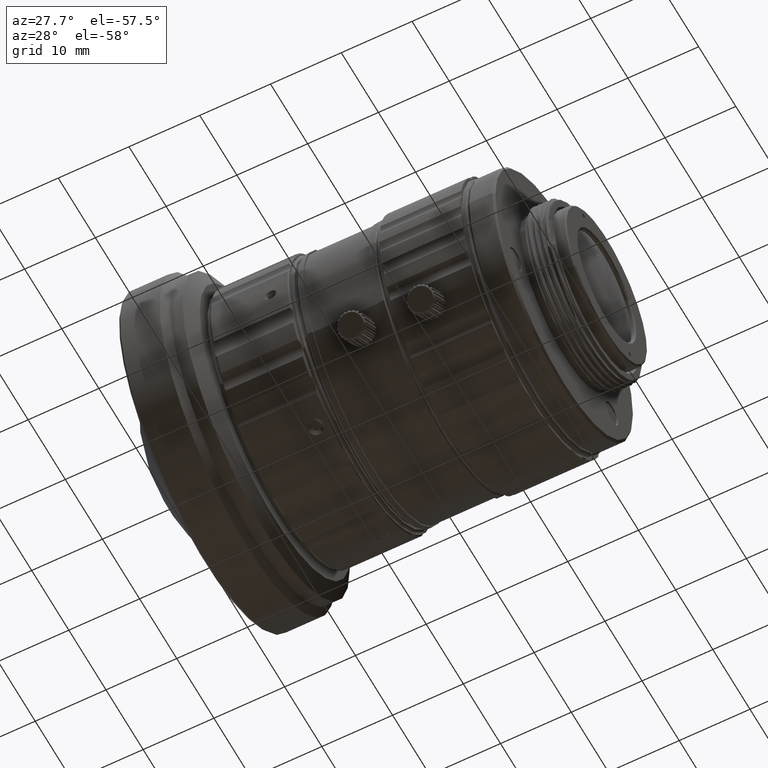
[diagram: clean part render]
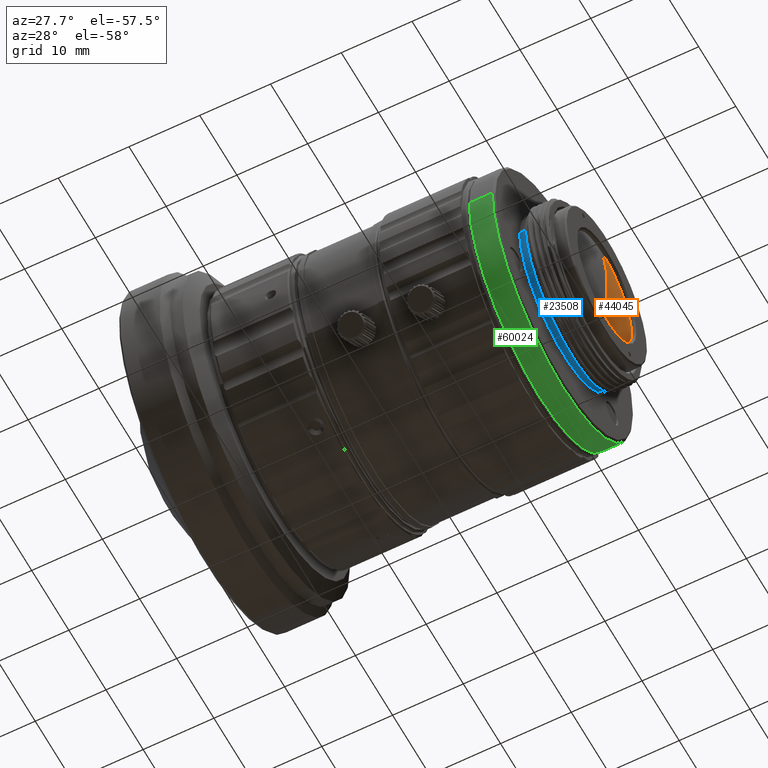
[diagram: same view with three faces highlighted in distinct colors, each labeled with its STEP entity id]
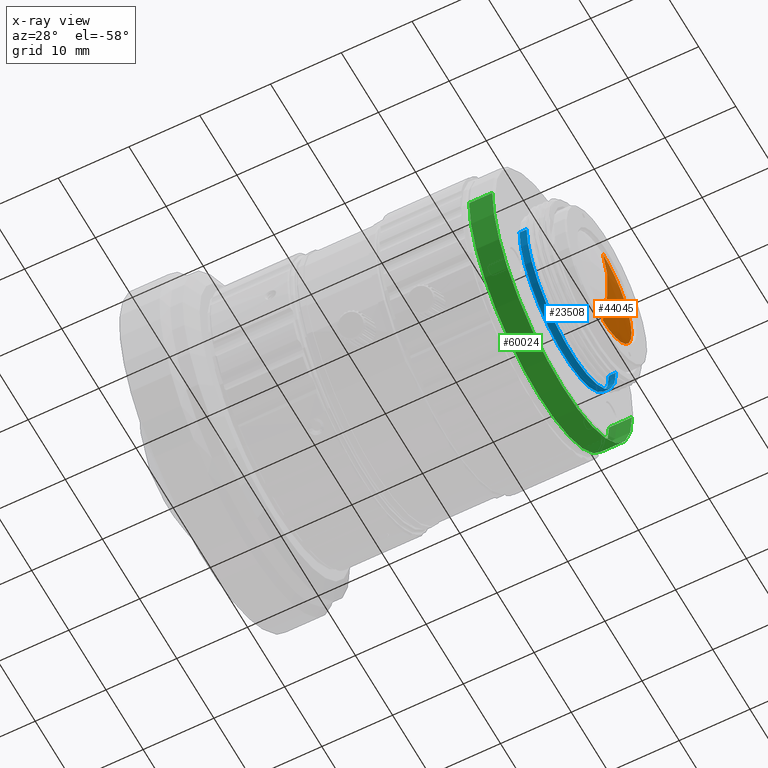
[diagram: x-ray of the same camera — body ghosted, the three highlighted faces saturated]
A machine part, auxiliary view with three faces highlighted in distinct colors.
The next image is the same camera in x-ray (body ghosted, the three faces saturated) — at least one of them is partly hidden behind the body in this view.
Their STEP definitions:

[orange] entity #44045 — the highlighted spherical surface has radius 43.6526 mm.
#222 = DIRECTION ( 'NONE',  ( 1.000000000000000000, 0.000000000000000000, 0.000000000000000000 ) ) ;
#1217 = CIRCLE ( 'NONE', #45950, 43.65259999999999962 ) ;
#1837 = AXIS2_PLACEMENT_3D ( 'NONE', #37677, #51714, #8087 ) ;
#4535 = CARTESIAN_POINT ( 'NONE',  ( 5.447539588305479796, 0.000000000000000000, -7.750000000000000000 ) ) ;
#8087 = DIRECTION ( 'NONE',  ( 0.000000000000000000, 0.000000000000000000, -1.000000000000000000 ) ) ;
#8329 = CARTESIAN_POINT ( 'NONE',  ( 5.447539588305479796, 0.000000000000000000, 7.750000000000000000 ) ) ;
#12480 = DIRECTION ( 'NONE',  ( -1.000000000000000000, 0.000000000000000000, 0.000000000000000000 ) ) ;
#12949 = ORIENTED_EDGE ( 'NONE', *, *, #28989, .T. ) ;
#13675 = VERTEX_POINT ( 'NONE', #8329 ) ;
#13807 = FACE_OUTER_BOUND ( 'NONE', #24471, .T. ) ;
#17659 = SPHERICAL_SURFACE ( 'NONE', #1837, 43.65259999999999962 ) ;
#18196 = CARTESIAN_POINT ( 'NONE',  ( 5.447539588305479796, 0.000000000000000000, 2.722205121666999688E-14 ) ) ;
#21611 = CIRCLE ( 'NONE', #61293, 7.750000000000000000 ) ;
#21740 = ORIENTED_EDGE ( 'NONE', *, *, #21941, .F. ) ;
#21941 = EDGE_CURVE ( 'NONE', #13675, #37461, #33569, .T. ) ;
#22414 = AXIS2_PLACEMENT_3D ( 'NONE', #18196, #12480, #61528 ) ;
#22615 = DIRECTION ( 'NONE',  ( 0.000000000000000000, 0.000000000000000000, 1.000000000000000000 ) ) ;
#24471 = EDGE_LOOP ( 'NONE', ( #42754, #21740, #12949 ) ) ;
#28989 = EDGE_CURVE ( 'NONE', #13675, #45250, #1217, .T. ) ;
#33098 = CARTESIAN_POINT ( 'NONE',  ( 5.447539588305479796, 0.000000000000000000, 2.722205121666999688E-14 ) ) ;
#33569 = CIRCLE ( 'NONE', #22414, 7.750000000000000000 ) ;
#36601 = DIRECTION ( 'NONE',  ( -1.000000000000000000, 0.000000000000000000, 0.000000000000000000 ) ) ;
#37461 = VERTEX_POINT ( 'NONE', #52979 ) ;
#37677 = CARTESIAN_POINT ( 'NONE',  ( -37.51159199928600430, 0.000000000000000000, 2.572346234934999722E-14 ) ) ;
#42754 = ORIENTED_EDGE ( 'NONE', *, *, #62416, .F. ) ;
#44045 = ADVANCED_FACE ( 'NONE', ( #13807 ), #17659, .T. ) ;
#45250 = VERTEX_POINT ( 'NONE', #4535 ) ;
#45950 = AXIS2_PLACEMENT_3D ( 'NONE', #58488, #58793, #222 ) ;
#51714 = DIRECTION ( 'NONE',  ( 0.000000000000000000, 1.000000000000000000, 0.000000000000000000 ) ) ;
#52979 = CARTESIAN_POINT ( 'NONE',  ( 5.447539588305479796, 5.959852519989380149, 4.954054696910049849 ) ) ;
#58488 = CARTESIAN_POINT ( 'NONE',  ( -37.51159199928600430, 0.000000000000000000, 2.572346234934999722E-14 ) ) ;
#58793 = DIRECTION ( 'NONE',  ( 0.000000000000000000, 1.000000000000000000, 0.000000000000000000 ) ) ;
#61293 = AXIS2_PLACEMENT_3D ( 'NONE', #33098, #36601, #22615 ) ;
#61528 = DIRECTION ( 'NONE',  ( 0.000000000000000000, 0.000000000000000000, 1.000000000000000000 ) ) ;
#62416 = EDGE_CURVE ( 'NONE', #37461, #45250, #21611, .T. ) ;

[blue] entity #23508 — the highlighted cylindrical surface (partial cylindrical patch) has radius 12 mm, axis along (1, 0, 0).
#329 = CARTESIAN_POINT ( 'NONE',  ( -4.687500000000000000, 0.000000000000000000, 0.000000000000000000 ) ) ;
#7058 = CARTESIAN_POINT ( 'NONE',  ( 1.000000000000000000, 0.000000000000000000, 0.000000000000000000 ) ) ;
#9563 = DIRECTION ( 'NONE',  ( 0.000000000000000000, 1.000000000000000000, 0.000000000000000000 ) ) ;
#10166 = DIRECTION ( 'NONE',  ( -1.000000000000000000, 0.000000000000000000, 0.000000000000000000 ) ) ;
#10551 = CARTESIAN_POINT ( 'NONE',  ( 1.000000000000000000, 12.00000000000000000, 0.000000000000000000 ) ) ;
#12038 = CARTESIAN_POINT ( 'NONE',  ( 1.000000000000000000, -12.00000000000000000, 0.000000000000000000 ) ) ;
#12966 = ORIENTED_EDGE ( 'NONE', *, *, #20837, .T. ) ;
#16244 = ORIENTED_EDGE ( 'NONE', *, *, #40677, .F. ) ;
#16433 = DIRECTION ( 'NONE',  ( 0.000000000000000000, 1.000000000000000000, 0.000000000000000000 ) ) ;
#18798 = CYLINDRICAL_SURFACE ( 'NONE', #42652, 12.00000000000000000 ) ;
#20062 = DIRECTION ( 'NONE',  ( 1.000000000000000000, 0.000000000000000000, 0.000000000000000000 ) ) ;
#20837 = EDGE_CURVE ( 'NONE', #56395, #54678, #61008, .T. ) ;
#21847 = CARTESIAN_POINT ( 'NONE',  ( 0.000000000000000000, 0.000000000000000000, 0.000000000000000000 ) ) ;
#22114 = EDGE_CURVE ( 'NONE', #54678, #45864, #50321, .T. ) ;
#23508 = ADVANCED_FACE ( 'NONE', ( #57964 ), #18798, .T. ) ;
#24529 = VERTEX_POINT ( 'NONE', #45602 ) ;
#29045 = AXIS2_PLACEMENT_3D ( 'NONE', #21847, #36466, #16433 ) ;
#31048 = CIRCLE ( 'NONE', #29045, 12.00000000000000000 ) ;
#31581 = DIRECTION ( 'NONE',  ( -1.000000000000000000, 0.000000000000000000, 0.000000000000000000 ) ) ;
#34408 = EDGE_CURVE ( 'NONE', #56395, #24529, #58276, .T. ) ;
#36466 = DIRECTION ( 'NONE',  ( -1.000000000000000000, 0.000000000000000000, 0.000000000000000000 ) ) ;
#39483 = CARTESIAN_POINT ( 'NONE',  ( 1.000000000000000000, -12.00000000000000000, 0.000000000000000000 ) ) ;
#40621 = AXIS2_PLACEMENT_3D ( 'NONE', #7058, #31581, #46234 ) ;
#40677 = EDGE_CURVE ( 'NONE', #24529, #45864, #31048, .T. ) ;
#40737 = DIRECTION ( 'NONE',  ( -1.000000000000000000, 0.000000000000000000, 0.000000000000000000 ) ) ;
#42216 = ORIENTED_EDGE ( 'NONE', *, *, #34408, .F. ) ;
#42326 = EDGE_LOOP ( 'NONE', ( #12966, #61909, #16244, #42216 ) ) ;
#42652 = AXIS2_PLACEMENT_3D ( 'NONE', #329, #20062, #9563 ) ;
#45602 = CARTESIAN_POINT ( 'NONE',  ( 0.000000000000000000, 12.00000000000000000, 0.000000000000000000 ) ) ;
#45864 = VERTEX_POINT ( 'NONE', #52704 ) ;
#46234 = DIRECTION ( 'NONE',  ( 0.000000000000000000, 1.000000000000000000, 0.000000000000000000 ) ) ;
#50321 = LINE ( 'NONE', #39483, #59049 ) ;
#52704 = CARTESIAN_POINT ( 'NONE',  ( 0.000000000000000000, -12.00000000000000000, 0.000000000000000000 ) ) ;
#53175 = CARTESIAN_POINT ( 'NONE',  ( 1.000000000000000000, 12.00000000000000000, 0.000000000000000000 ) ) ;
#53308 = VECTOR ( 'NONE', #10166, 1000.000000000000000 ) ;
#54678 = VERTEX_POINT ( 'NONE', #12038 ) ;
#56395 = VERTEX_POINT ( 'NONE', #10551 ) ;
#57964 = FACE_OUTER_BOUND ( 'NONE', #42326, .T. ) ;
#58276 = LINE ( 'NONE', #53175, #53308 ) ;
#59049 = VECTOR ( 'NONE', #40737, 1000.000000000000000 ) ;
#61008 = CIRCLE ( 'NONE', #40621, 12.00000000000000000 ) ;
#61909 = ORIENTED_EDGE ( 'NONE', *, *, #22114, .T. ) ;

[green] entity #60024 — the highlighted cylindrical surface (partial cylindrical patch) has radius 18.8 mm, axis along (1, 0, 0).
#91 = EDGE_CURVE ( 'NONE', #28571, #20565, #28131, .T. ) ;
#1721 = EDGE_CURVE ( 'NONE', #28571, #8095, #34556, .T. ) ;
#5546 = DIRECTION ( 'NONE',  ( 0.000000000000000000, 1.000000000000000000, 0.000000000000000000 ) ) ;
#6385 = AXIS2_PLACEMENT_3D ( 'NONE', #33582, #54295, #38992 ) ;
#7007 = ORIENTED_EDGE ( 'NONE', *, *, #41030, .T. ) ;
#8095 = VERTEX_POINT ( 'NONE', #42805 ) ;
#8682 = DIRECTION ( 'NONE',  ( -1.000000000000000000, -4.508120372617999933E-12, 7.859256913730000053E-10 ) ) ;
#9061 = DIRECTION ( 'NONE',  ( -1.000000000000000000, 4.508120372617999933E-12, -7.859250491516999859E-10 ) ) ;
#9540 = EDGE_CURVE ( 'NONE', #20565, #62766, #50120, .T. ) ;
#17296 = VECTOR ( 'NONE', #8682, 1000.000000000000000 ) ;
#18004 = CARTESIAN_POINT ( 'NONE',  ( -0.2999999999668999662, -18.79999999997000160, 4.734740002676999994E-10 ) ) ;
#19852 = VECTOR ( 'NONE', #9061, 1000.000000000000000 ) ;
#19933 = ORIENTED_EDGE ( 'NONE', *, *, #9540, .F. ) ;
#20520 = FACE_OUTER_BOUND ( 'NONE', #54142, .T. ) ;
#20565 = VERTEX_POINT ( 'NONE', #50075 ) ;
#24336 = CYLINDRICAL_SURFACE ( 'NONE', #44915, 18.80000000000000071 ) ;
#28131 = LINE ( 'NONE', #52316, #17296 ) ;
#28571 = VERTEX_POINT ( 'NONE', #46808 ) ;
#29383 = DIRECTION ( 'NONE',  ( -1.000000000000000000, 0.000000000000000000, 0.000000000000000000 ) ) ;
#29580 = CARTESIAN_POINT ( 'NONE',  ( -3.550000000000000266, -18.80000000000000071, 0.000000000000000000 ) ) ;
#30385 = CARTESIAN_POINT ( 'NONE',  ( -4.687500000000000000, 0.000000000000000000, 0.000000000000000000 ) ) ;
#33582 = CARTESIAN_POINT ( 'NONE',  ( -3.550000000000000266, 0.000000000000000000, 0.000000000000000000 ) ) ;
#34556 = CIRCLE ( 'NONE', #56939, 18.80000000000000071 ) ;
#36139 = ORIENTED_EDGE ( 'NONE', *, *, #1721, .T. ) ;
#38992 = DIRECTION ( 'NONE',  ( 0.000000000000000000, 1.000000000000000000, 0.000000000000000000 ) ) ;
#39542 = DIRECTION ( 'NONE',  ( 0.000000000000000000, 1.000000000000000000, 0.000000000000000000 ) ) ;
#41030 = EDGE_CURVE ( 'NONE', #8095, #62766, #57168, .T. ) ;
#42805 = CARTESIAN_POINT ( 'NONE',  ( -0.2999999999999999889, -18.80000000000000071, 0.000000000000000000 ) ) ;
#44915 = AXIS2_PLACEMENT_3D ( 'NONE', #30385, #54278, #5546 ) ;
#45164 = ORIENTED_EDGE ( 'NONE', *, *, #91, .F. ) ;
#46808 = CARTESIAN_POINT ( 'NONE',  ( -0.2999999999999999889, 18.80000000000000071, 0.000000000000000000 ) ) ;
#50075 = CARTESIAN_POINT ( 'NONE',  ( -3.550000000000000266, 18.80000000000000071, 0.000000000000000000 ) ) ;
#50120 = CIRCLE ( 'NONE', #6385, 18.80000000000000071 ) ;
#52316 = CARTESIAN_POINT ( 'NONE',  ( -0.2999999999668999662, 18.79999999997000160, -4.734756194613999891E-10 ) ) ;
#53576 = CARTESIAN_POINT ( 'NONE',  ( -0.2999999999999999889, 0.000000000000000000, 0.000000000000000000 ) ) ;
#54142 = EDGE_LOOP ( 'NONE', ( #7007, #19933, #45164, #36139 ) ) ;
#54278 = DIRECTION ( 'NONE',  ( 1.000000000000000000, 0.000000000000000000, 0.000000000000000000 ) ) ;
#54295 = DIRECTION ( 'NONE',  ( -1.000000000000000000, 0.000000000000000000, 0.000000000000000000 ) ) ;
#56939 = AXIS2_PLACEMENT_3D ( 'NONE', #53576, #29383, #39542 ) ;
#57168 = LINE ( 'NONE', #18004, #19852 ) ;
#60024 = ADVANCED_FACE ( 'NONE', ( #20520 ), #24336, .T. ) ;
#62766 = VERTEX_POINT ( 'NONE', #29580 ) ;